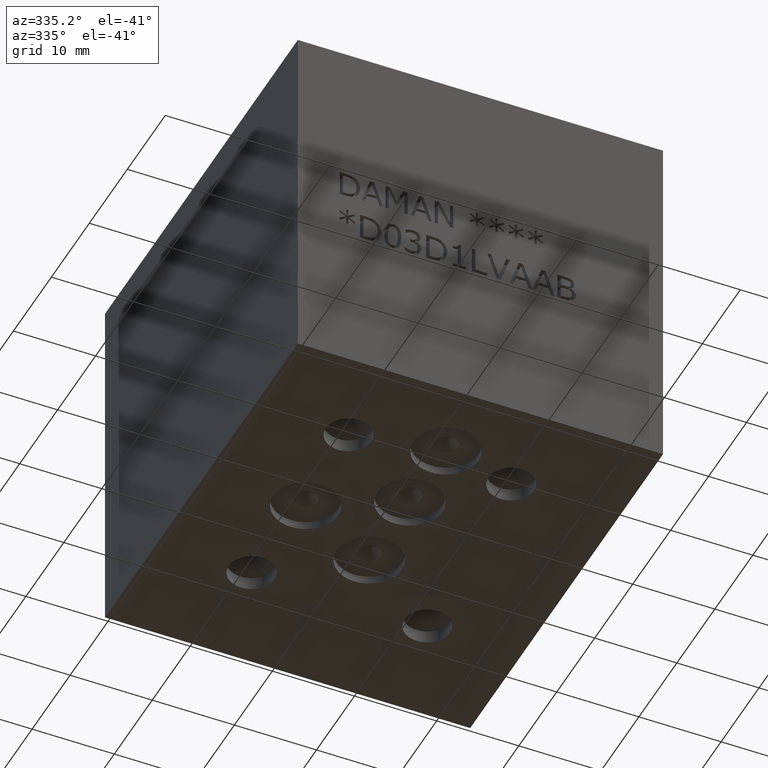
[diagram: clean part render]
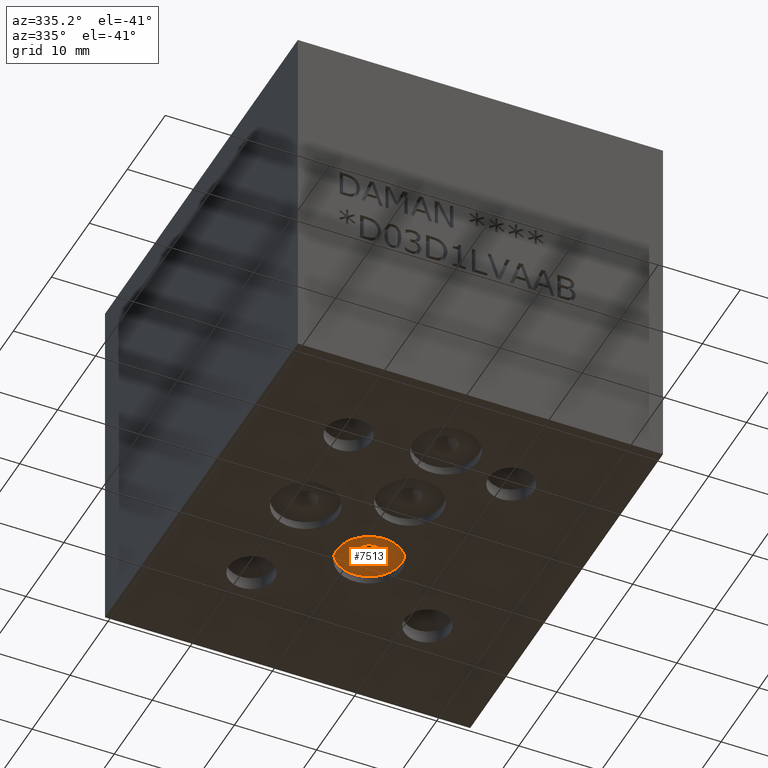
[diagram: same view with one face highlighted and labeled with its STEP entity id]
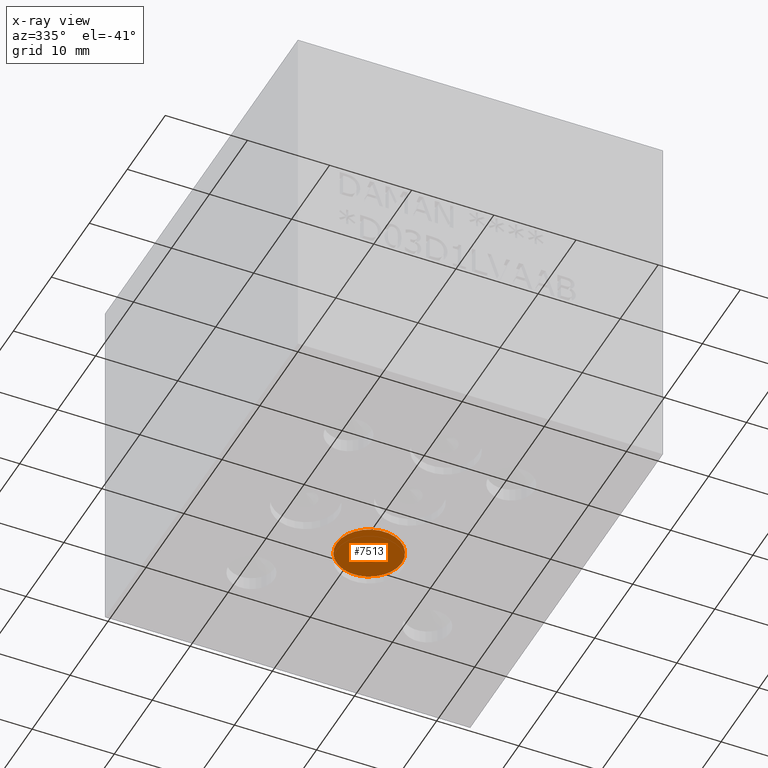
[diagram: x-ray of the same camera — body ghosted, the highlighted face saturated]
A machine part, auxiliary view. The second image highlights one B-rep face of the part: STEP entity #7513.
The next image is the same camera in x-ray: the body ghosted, the highlighted face saturated — about 0% of this face is hidden behind the body in this view.
In plain terms, the highlighted planar face has unit normal (0, 0, -1).
Its self-contained STEP definition (entity closure, byte-faithful):
#42=CIRCLE('',#7846,3.9624);
#43=CIRCLE('',#7847,3.9624);
#44=CIRCLE('',#7849,1.4152302266792);
#204=FACE_BOUND('',#1177,.T.);
#764=FACE_OUTER_BOUND('',#1176,.T.);
#1176=EDGE_LOOP('',(#6295,#6296));
#1177=EDGE_LOOP('',(#6297));
#3409=VERTEX_POINT('',#12314);
#3410=VERTEX_POINT('',#12316);
#3411=VERTEX_POINT('',#12320);
#4407=EDGE_CURVE('',#3410,#3409,#42,.T.);
#4408=EDGE_CURVE('',#3409,#3410,#43,.T.);
#4409=EDGE_CURVE('',#3411,#3411,#44,.T.);
#6295=ORIENTED_EDGE('',*,*,#4407,.T.);
#6296=ORIENTED_EDGE('',*,*,#4408,.T.);
#6297=ORIENTED_EDGE('',*,*,#4409,.F.);
#6874=PLANE('',#7848);
#7513=ADVANCED_FACE('',(#764,#204),#6874,.T.);
#7846=AXIS2_PLACEMENT_3D('',#12317,#9245,#9246);
#7847=AXIS2_PLACEMENT_3D('',#12318,#9247,#9248);
#7848=AXIS2_PLACEMENT_3D('',#12319,#9249,#9250);
#7849=AXIS2_PLACEMENT_3D('',#12321,#9251,#9252);
#9245=DIRECTION('center_axis',(0.,0.,-1.));
#9246=DIRECTION('ref_axis',(1.,0.,0.));
#9247=DIRECTION('center_axis',(0.,0.,-1.));
#9248=DIRECTION('ref_axis',(1.,0.,0.));
#9249=DIRECTION('center_axis',(0.,0.,-1.));
#9250=DIRECTION('ref_axis',(1.,0.,0.));
#9251=DIRECTION('center_axis',(0.,0.,-1.));
#9252=DIRECTION('ref_axis',(1.,0.,0.));
#12314=CARTESIAN_POINT('',(18.4912,29.7942,1.016));
#12316=CARTESIAN_POINT('',(26.416,29.7942,1.016));
#12317=CARTESIAN_POINT('Origin',(22.4536,29.7942,1.016));
#12318=CARTESIAN_POINT('Origin',(22.4536,29.7942,1.016));
#12319=CARTESIAN_POINT('Origin',(22.4536,29.7942,1.016));
#12320=CARTESIAN_POINT('',(21.0383697733208,29.7942,1.016));
#12321=CARTESIAN_POINT('Origin',(22.4536,29.7942,1.016));